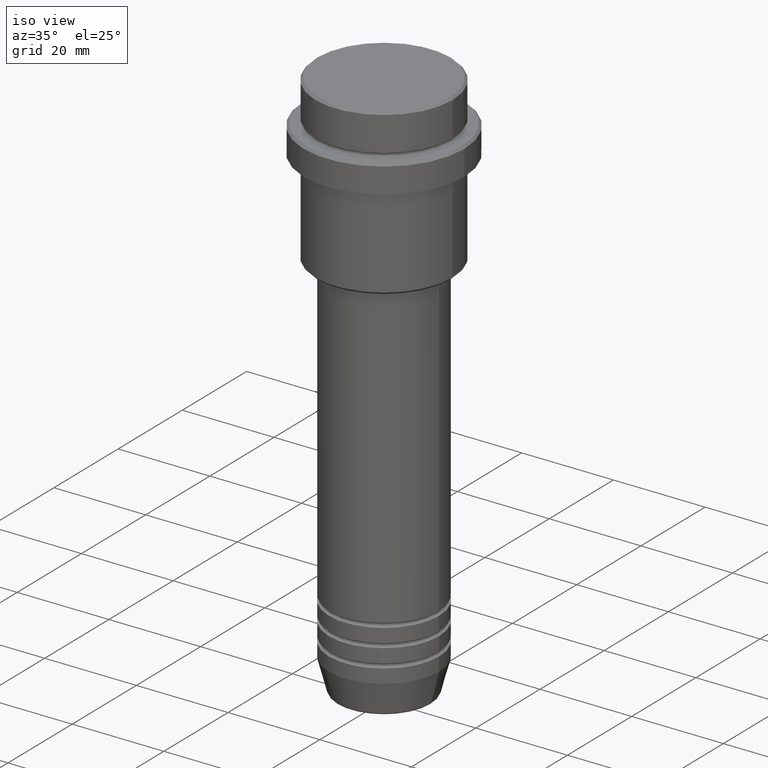
[diagram: clean part render]
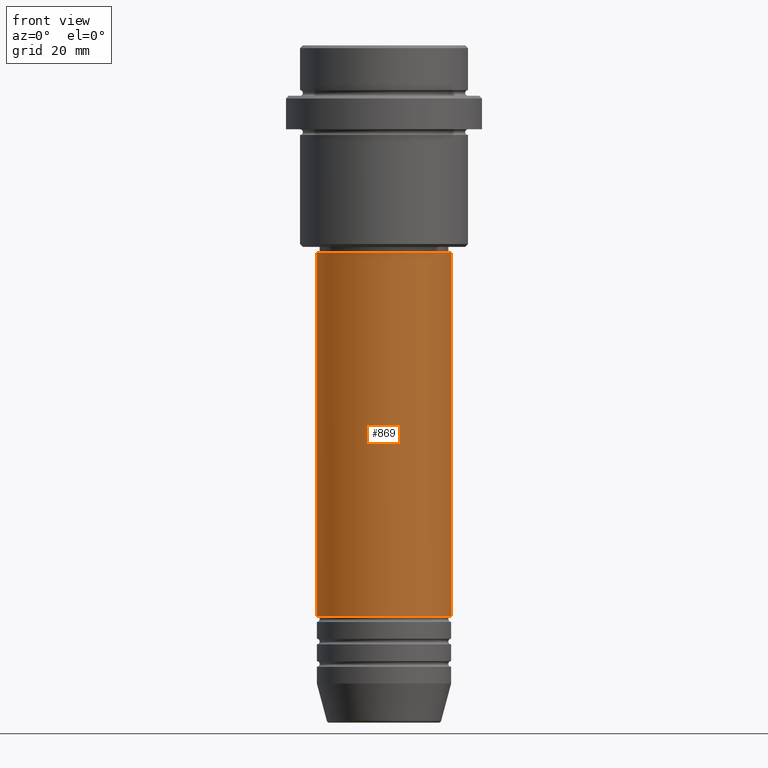
[diagram: tour spotlight — one face highlighted and labeled with its STEP entity id]
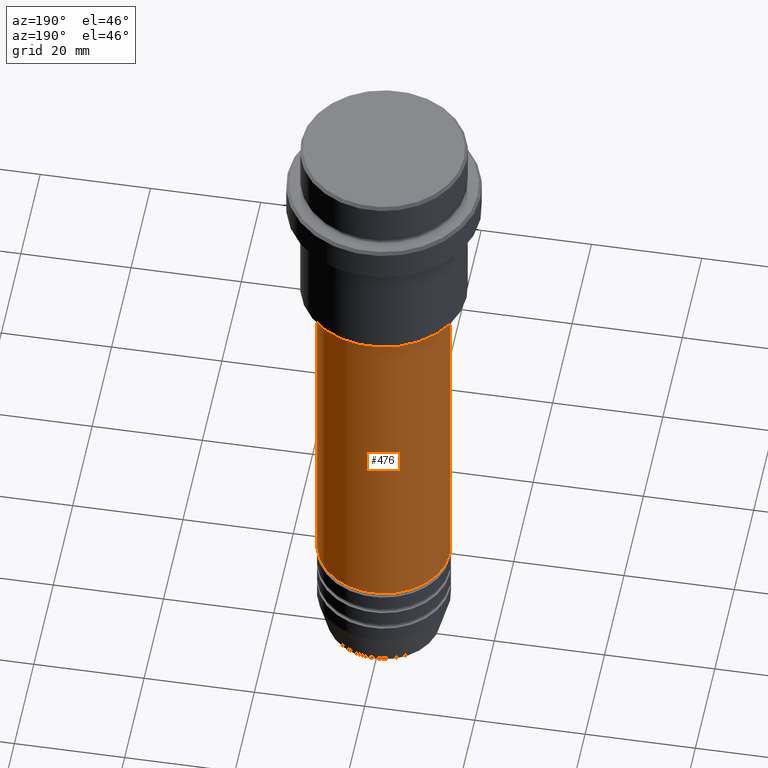
[diagram: tour spotlight — one face highlighted and labeled with its STEP entity id]
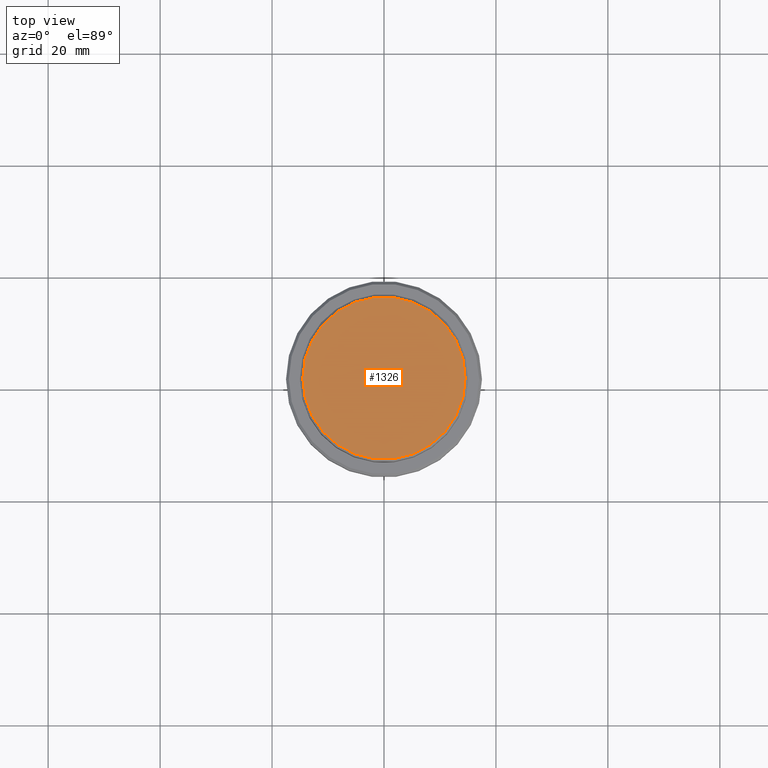
[diagram: tour spotlight — one face highlighted and labeled with its STEP entity id]
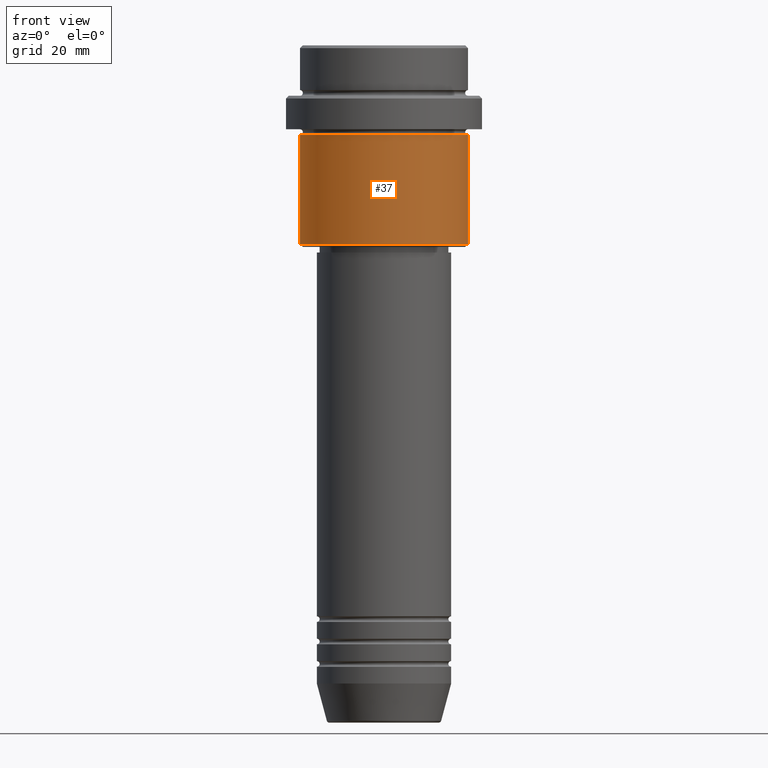
[diagram: tour spotlight — one face highlighted and labeled with its STEP entity id]
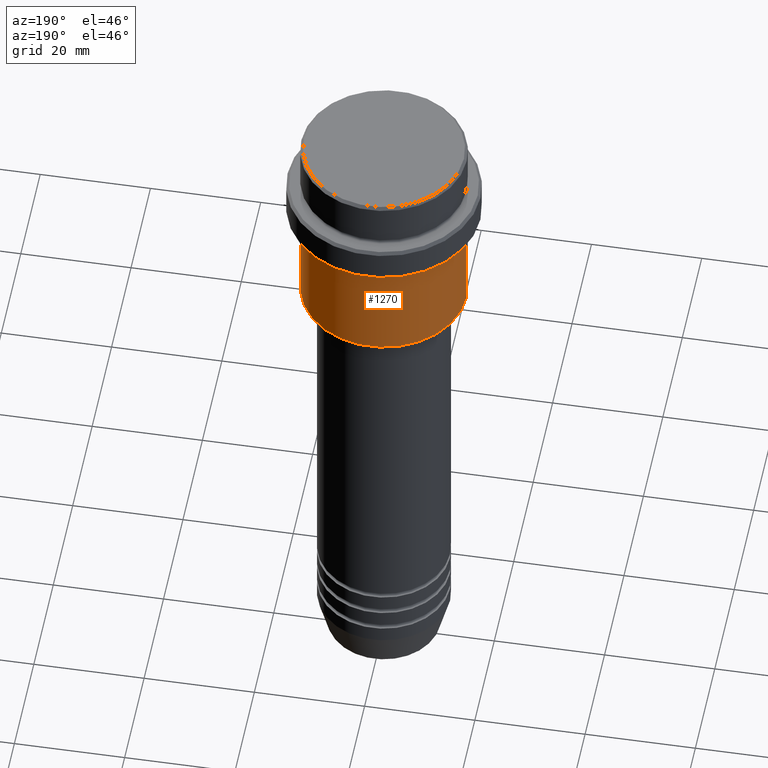
[diagram: tour spotlight — one face highlighted and labeled with its STEP entity id]
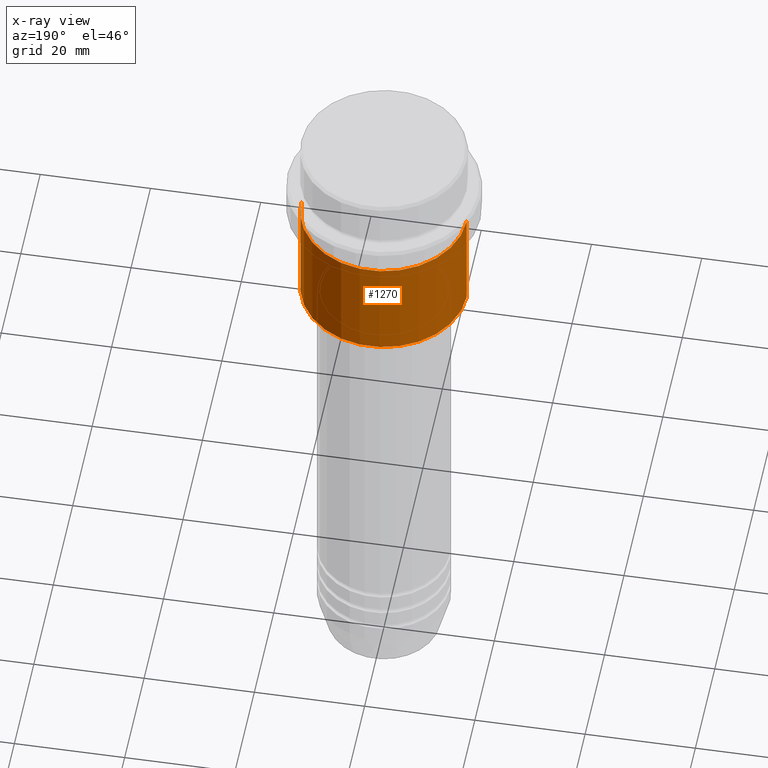
[diagram: x-ray of the same camera — body ghosted, this tour face saturated]
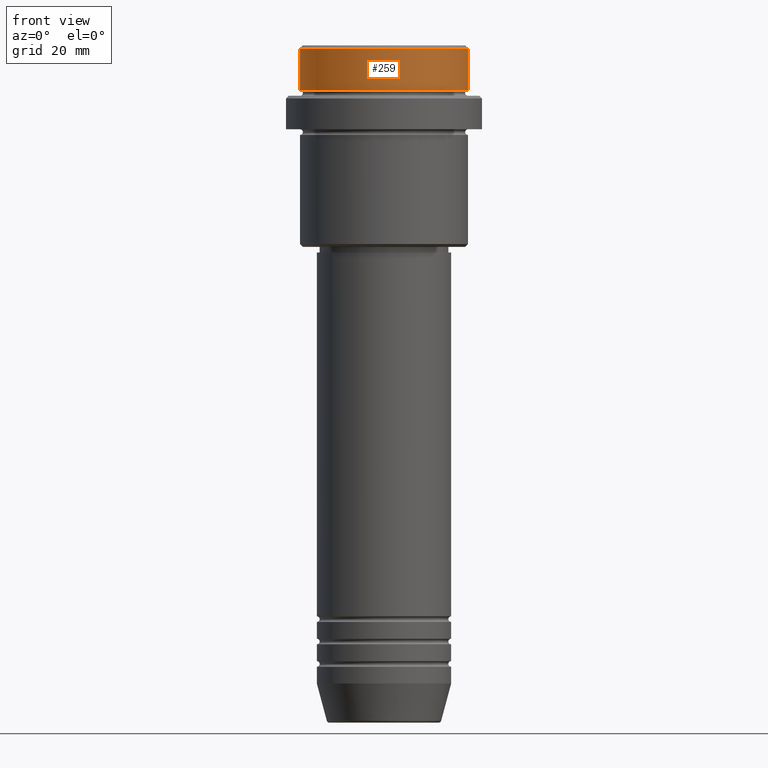
[diagram: tour spotlight — one face highlighted and labeled with its STEP entity id]
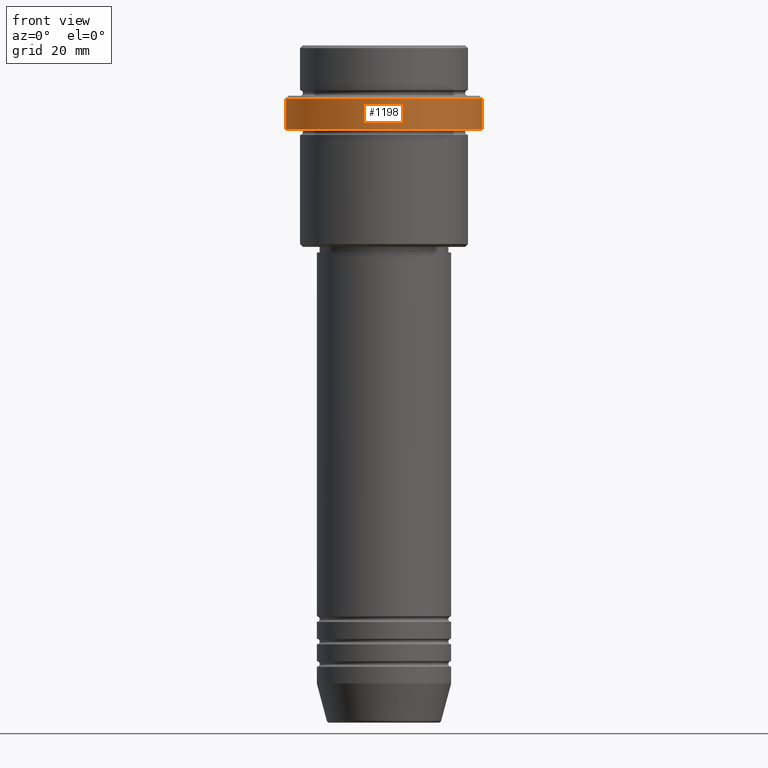
[diagram: tour spotlight — one face highlighted and labeled with its STEP entity id]
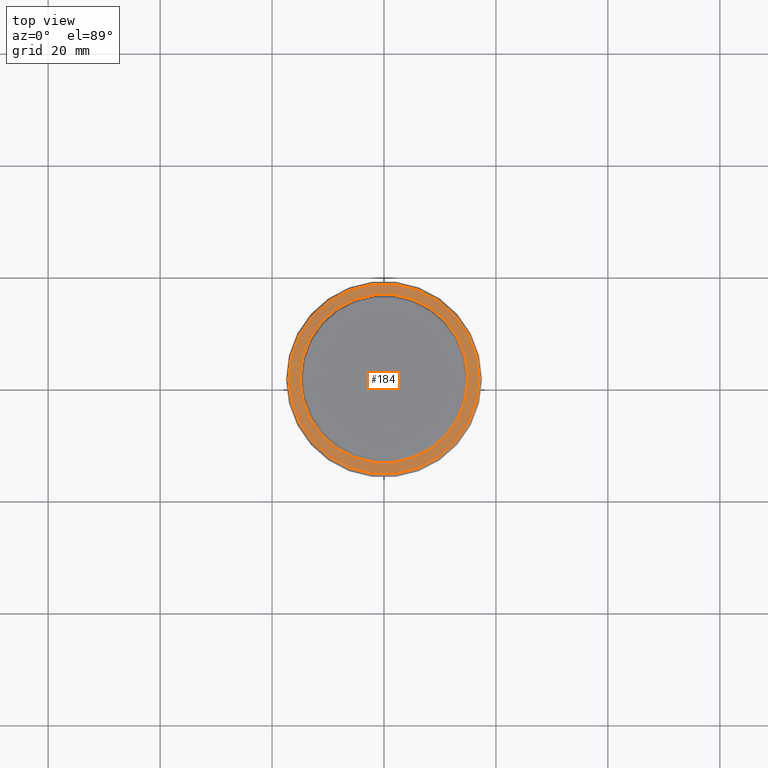
[diagram: tour spotlight — one face highlighted and labeled with its STEP entity id]
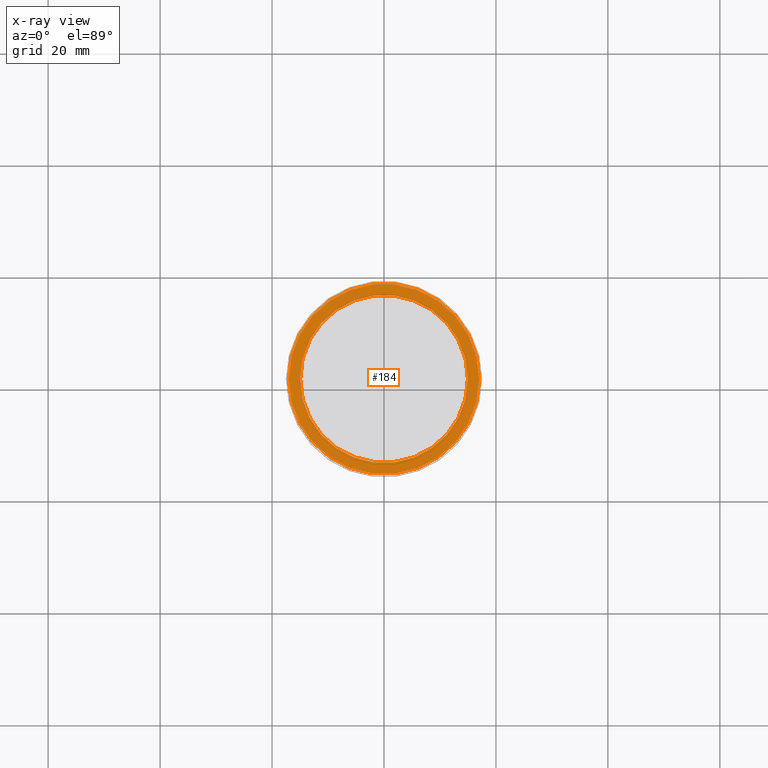
[diagram: x-ray of the same camera — body ghosted, this tour face saturated]
A machine part: a face-by-face anatomy tour. The part has 52 B-rep faces; the first image is the clean iso view, then the 8 largest visible faces are spotlighted one at a time (largest first), each with its STEP entity span.

Face 1 — front view, entity #869. In plain terms, the highlighted cylindrical surface (partial cylindrical patch) has radius 12 mm, axis along (-0, -0, 1).
Definition (entity closure, byte-faithful):
#58 = DIRECTION ( 'NONE',  ( 1.000000000000000000, 0.000000000000000000, 0.000000000000000000 ) ) ;
#64 = VERTEX_POINT ( 'NONE', #377 ) ;
#75 = DIRECTION ( 'NONE',  ( -0.000000000000000000, -0.000000000000000000, 1.000000000000000000 ) ) ;
#88 = DIRECTION ( 'NONE',  ( 1.000000000000000000, 0.000000000000000000, 0.000000000000000000 ) ) ;
#134 = LINE ( 'NONE', #725, #887 ) ;
#190 = CYLINDRICAL_SURFACE ( 'NONE', #287, 12.00000000000000000 ) ;
#203 = ORIENTED_EDGE ( 'NONE', *, *, #241, .F. ) ;
#232 = CARTESIAN_POINT ( 'NONE',  ( -11.99999999999999822, 1.469576158976823750E-15, -37.00000000000002132 ) ) ;
#241 = EDGE_CURVE ( 'NONE', #1323, #1069, #134, .T. ) ;
#282 = DIRECTION ( 'NONE',  ( -0.000000000000000000, -0.000000000000000000, 1.000000000000000000 ) ) ;
#285 = CARTESIAN_POINT ( 'NONE',  ( 12.00000000000000000, 0.000000000000000000, 0.000000000000000000 ) ) ;
#287 = AXIS2_PLACEMENT_3D ( 'NONE', #640, #1074, #1161 ) ;
#377 = CARTESIAN_POINT ( 'NONE',  ( 11.99999999999999822, 0.000000000000000000, -37.00000000000002132 ) ) ;
#397 = LINE ( 'NONE', #285, #1140 ) ;
#406 = DIRECTION ( 'NONE',  ( -0.000000000000000000, -0.000000000000000000, 1.000000000000000000 ) ) ;
#421 = CARTESIAN_POINT ( 'NONE',  ( 0.000000000000000000, 0.000000000000000000, -101.9999999999999005 ) ) ;
#452 = AXIS2_PLACEMENT_3D ( 'NONE', #421, #75, #88 ) ;
#479 = DIRECTION ( 'NONE',  ( -0.000000000000000000, -0.000000000000000000, 1.000000000000000000 ) ) ;
#609 = CARTESIAN_POINT ( 'NONE',  ( 0.000000000000000000, 0.000000000000000000, -37.00000000000002132 ) ) ;
#640 = CARTESIAN_POINT ( 'NONE',  ( 0.000000000000000000, 0.000000000000000000, 0.000000000000000000 ) ) ;
#703 = EDGE_CURVE ( 'NONE', #1069, #64, #1139, .T. ) ;
#725 = CARTESIAN_POINT ( 'NONE',  ( -12.00000000000000000, 1.469576158976823947E-15, 0.000000000000000000 ) ) ;
#811 = EDGE_CURVE ( 'NONE', #1323, #1177, #1068, .T. ) ;
#854 = CARTESIAN_POINT ( 'NONE',  ( -12.00000000000000000, 1.469576158976823947E-15, -101.9999999999999005 ) ) ;
#869 = ADVANCED_FACE ( 'NONE', ( #1389 ), #190, .T. ) ;
#887 = VECTOR ( 'NONE', #282, 1000.000000000000000 ) ;
#918 = EDGE_CURVE ( 'NONE', #1177, #64, #397, .T. ) ;
#974 = ORIENTED_EDGE ( 'NONE', *, *, #918, .T. ) ;
#1068 = CIRCLE ( 'NONE', #452, 12.00000000000000000 ) ;
#1069 = VERTEX_POINT ( 'NONE', #232 ) ;
#1074 = DIRECTION ( 'NONE',  ( -0.000000000000000000, -0.000000000000000000, 1.000000000000000000 ) ) ;
#1139 = CIRCLE ( 'NONE', #1404, 11.99999999999999822 ) ;
#1140 = VECTOR ( 'NONE', #406, 1000.000000000000000 ) ;
#1161 = DIRECTION ( 'NONE',  ( 1.000000000000000000, 0.000000000000000000, 0.000000000000000000 ) ) ;
#1177 = VERTEX_POINT ( 'NONE', #1334 ) ;
#1199 = EDGE_LOOP ( 'NONE', ( #203, #1280, #974, #1405 ) ) ;
#1280 = ORIENTED_EDGE ( 'NONE', *, *, #811, .T. ) ;
#1323 = VERTEX_POINT ( 'NONE', #854 ) ;
#1334 = CARTESIAN_POINT ( 'NONE',  ( 12.00000000000000000, 0.000000000000000000, -101.9999999999999005 ) ) ;
#1389 = FACE_OUTER_BOUND ( 'NONE', #1199, .T. ) ;
#1404 = AXIS2_PLACEMENT_3D ( 'NONE', #609, #479, #58 ) ;
#1405 = ORIENTED_EDGE ( 'NONE', *, *, #703, .F. ) ;

Face 2 — auxiliary view, entity #476. In plain terms, the highlighted cylindrical surface (partial cylindrical patch) has radius 12 mm, axis along (-0, -0, 1).
Definition (entity closure, byte-faithful):
#64 = VERTEX_POINT ( 'NONE', #377 ) ;
#76 = CIRCLE ( 'NONE', #951, 11.99999999999999822 ) ;
#134 = LINE ( 'NONE', #725, #887 ) ;
#178 = DIRECTION ( 'NONE',  ( -0.000000000000000000, -0.000000000000000000, 1.000000000000000000 ) ) ;
#186 = DIRECTION ( 'NONE',  ( 1.000000000000000000, 0.000000000000000000, 0.000000000000000000 ) ) ;
#193 = CYLINDRICAL_SURFACE ( 'NONE', #1196, 12.00000000000000000 ) ;
#232 = CARTESIAN_POINT ( 'NONE',  ( -11.99999999999999822, 1.469576158976823750E-15, -37.00000000000002132 ) ) ;
#241 = EDGE_CURVE ( 'NONE', #1323, #1069, #134, .T. ) ;
#282 = DIRECTION ( 'NONE',  ( -0.000000000000000000, -0.000000000000000000, 1.000000000000000000 ) ) ;
#285 = CARTESIAN_POINT ( 'NONE',  ( 12.00000000000000000, 0.000000000000000000, 0.000000000000000000 ) ) ;
#315 = CARTESIAN_POINT ( 'NONE',  ( 0.000000000000000000, 0.000000000000000000, -37.00000000000002132 ) ) ;
#377 = CARTESIAN_POINT ( 'NONE',  ( 11.99999999999999822, 0.000000000000000000, -37.00000000000002132 ) ) ;
#397 = LINE ( 'NONE', #285, #1140 ) ;
#406 = DIRECTION ( 'NONE',  ( -0.000000000000000000, -0.000000000000000000, 1.000000000000000000 ) ) ;
#416 = FACE_OUTER_BOUND ( 'NONE', #944, .T. ) ;
#437 = EDGE_CURVE ( 'NONE', #64, #1069, #76, .T. ) ;
#476 = ADVANCED_FACE ( 'NONE', ( #416 ), #193, .T. ) ;
#629 = DIRECTION ( 'NONE',  ( -0.000000000000000000, -0.000000000000000000, 1.000000000000000000 ) ) ;
#632 = CARTESIAN_POINT ( 'NONE',  ( 0.000000000000000000, 0.000000000000000000, -101.9999999999999005 ) ) ;
#645 = CARTESIAN_POINT ( 'NONE',  ( 0.000000000000000000, 0.000000000000000000, 0.000000000000000000 ) ) ;
#725 = CARTESIAN_POINT ( 'NONE',  ( -12.00000000000000000, 1.469576158976823947E-15, 0.000000000000000000 ) ) ;
#819 = CIRCLE ( 'NONE', #1180, 12.00000000000000000 ) ;
#854 = CARTESIAN_POINT ( 'NONE',  ( -12.00000000000000000, 1.469576158976823947E-15, -101.9999999999999005 ) ) ;
#887 = VECTOR ( 'NONE', #282, 1000.000000000000000 ) ;
#918 = EDGE_CURVE ( 'NONE', #1177, #64, #397, .T. ) ;
#944 = EDGE_LOOP ( 'NONE', ( #980, #1305, #1197, #1091 ) ) ;
#951 = AXIS2_PLACEMENT_3D ( 'NONE', #315, #1390, #186 ) ;
#980 = ORIENTED_EDGE ( 'NONE', *, *, #1354, .T. ) ;
#1061 = DIRECTION ( 'NONE',  ( 1.000000000000000000, 0.000000000000000000, 0.000000000000000000 ) ) ;
#1063 = DIRECTION ( 'NONE',  ( 1.000000000000000000, 0.000000000000000000, 0.000000000000000000 ) ) ;
#1069 = VERTEX_POINT ( 'NONE', #232 ) ;
#1091 = ORIENTED_EDGE ( 'NONE', *, *, #918, .F. ) ;
#1140 = VECTOR ( 'NONE', #406, 1000.000000000000000 ) ;
#1177 = VERTEX_POINT ( 'NONE', #1334 ) ;
#1180 = AXIS2_PLACEMENT_3D ( 'NONE', #632, #178, #1063 ) ;
#1196 = AXIS2_PLACEMENT_3D ( 'NONE', #645, #629, #1061 ) ;
#1197 = ORIENTED_EDGE ( 'NONE', *, *, #437, .F. ) ;
#1305 = ORIENTED_EDGE ( 'NONE', *, *, #241, .T. ) ;
#1323 = VERTEX_POINT ( 'NONE', #854 ) ;
#1334 = CARTESIAN_POINT ( 'NONE',  ( 12.00000000000000000, 0.000000000000000000, -101.9999999999999005 ) ) ;
#1354 = EDGE_CURVE ( 'NONE', #1177, #1323, #819, .T. ) ;
#1390 = DIRECTION ( 'NONE',  ( -0.000000000000000000, -0.000000000000000000, 1.000000000000000000 ) ) ;

Face 3 — top view, entity #1326. In plain terms, the highlighted planar face has unit normal (0, -0, 1).
Definition (entity closure, byte-faithful):
#138 = DIRECTION ( 'NONE',  ( -0.000000000000000000, -0.000000000000000000, 1.000000000000000000 ) ) ;
#210 = VERTEX_POINT ( 'NONE', #1324 ) ;
#402 = CIRCLE ( 'NONE', #1175, 14.50000000000001066 ) ;
#404 = DIRECTION ( 'NONE',  ( 0.000000000000000000, -0.000000000000000000, 1.000000000000000000 ) ) ;
#405 = CIRCLE ( 'NONE', #432, 14.50000000000001066 ) ;
#432 = AXIS2_PLACEMENT_3D ( 'NONE', #1128, #1133, #601 ) ;
#500 = EDGE_CURVE ( 'NONE', #210, #1337, #402, .T. ) ;
#573 = AXIS2_PLACEMENT_3D ( 'NONE', #735, #404, #932 ) ;
#601 = DIRECTION ( 'NONE',  ( 1.000000000000000000, 0.000000000000000000, 0.000000000000000000 ) ) ;
#638 = FACE_OUTER_BOUND ( 'NONE', #699, .T. ) ;
#697 = EDGE_CURVE ( 'NONE', #1337, #210, #405, .T. ) ;
#699 = EDGE_LOOP ( 'NONE', ( #1077, #794 ) ) ;
#735 = CARTESIAN_POINT ( 'NONE',  ( 0.000000000000000000, 0.000000000000000000, 0.000000000000000000 ) ) ;
#794 = ORIENTED_EDGE ( 'NONE', *, *, #697, .T. ) ;
#878 = DIRECTION ( 'NONE',  ( 1.000000000000000000, 0.000000000000000000, 0.000000000000000000 ) ) ;
#932 = DIRECTION ( 'NONE',  ( 1.000000000000000000, 0.000000000000000000, 0.000000000000000000 ) ) ;
#1053 = PLANE ( 'NONE',  #573 ) ;
#1077 = ORIENTED_EDGE ( 'NONE', *, *, #500, .T. ) ;
#1105 = CARTESIAN_POINT ( 'NONE',  ( 0.000000000000000000, 0.000000000000000000, 0.000000000000000000 ) ) ;
#1128 = CARTESIAN_POINT ( 'NONE',  ( 0.000000000000000000, 0.000000000000000000, 0.000000000000000000 ) ) ;
#1133 = DIRECTION ( 'NONE',  ( -0.000000000000000000, -0.000000000000000000, 1.000000000000000000 ) ) ;
#1175 = AXIS2_PLACEMENT_3D ( 'NONE', #1105, #138, #878 ) ;
#1286 = CARTESIAN_POINT ( 'NONE',  ( 14.50000000000001066, 1.806354028742346591E-15, 0.000000000000000000 ) ) ;
#1324 = CARTESIAN_POINT ( 'NONE',  ( -14.50000000000001066, 0.000000000000000000, 0.000000000000000000 ) ) ;
#1326 = ADVANCED_FACE ( 'NONE', ( #638 ), #1053, .T. ) ;
#1337 = VERTEX_POINT ( 'NONE', #1286 ) ;

Face 4 — front view, entity #37. In plain terms, the highlighted cylindrical surface (partial cylindrical patch) has radius 15 mm, axis along (-0, -0, 1).
Definition (entity closure, byte-faithful):
#22 = VERTEX_POINT ( 'NONE', #1131 ) ;
#37 = ADVANCED_FACE ( 'NONE', ( #149 ), #590, .T. ) ;
#59 = AXIS2_PLACEMENT_3D ( 'NONE', #340, #348, #791 ) ;
#97 = DIRECTION ( 'NONE',  ( -0.000000000000000000, -0.000000000000000000, 1.000000000000000000 ) ) ;
#149 = FACE_OUTER_BOUND ( 'NONE', #333, .T. ) ;
#215 = CIRCLE ( 'NONE', #59, 15.00000000000000000 ) ;
#258 = CARTESIAN_POINT ( 'NONE',  ( 15.00000000000000178, 0.000000000000000000, -16.00000000000000000 ) ) ;
#333 = EDGE_LOOP ( 'NONE', ( #1209, #1181, #1041, #760 ) ) ;
#340 = CARTESIAN_POINT ( 'NONE',  ( 0.000000000000000000, 0.000000000000000000, -35.49999999999999289 ) ) ;
#348 = DIRECTION ( 'NONE',  ( -0.000000000000000000, -0.000000000000000000, 1.000000000000000000 ) ) ;
#400 = LINE ( 'NONE', #837, #1088 ) ;
#438 = DIRECTION ( 'NONE',  ( -0.000000000000000000, -0.000000000000000000, 1.000000000000000000 ) ) ;
#439 = DIRECTION ( 'NONE',  ( -0.000000000000000000, -0.000000000000000000, 1.000000000000000000 ) ) ;
#470 = EDGE_CURVE ( 'NONE', #823, #670, #400, .T. ) ;
#524 = DIRECTION ( 'NONE',  ( -0.000000000000000000, -0.000000000000000000, 1.000000000000000000 ) ) ;
#525 = EDGE_CURVE ( 'NONE', #1208, #22, #1215, .T. ) ;
#527 = CARTESIAN_POINT ( 'NONE',  ( -15.00000000000000000, 1.836970198721029589E-15, -35.49999999999999289 ) ) ;
#590 = CYLINDRICAL_SURFACE ( 'NONE', #955, 15.00000000000000000 ) ;
#596 = AXIS2_PLACEMENT_3D ( 'NONE', #1213, #438, #1006 ) ;
#613 = EDGE_CURVE ( 'NONE', #1208, #823, #215, .T. ) ;
#630 = DIRECTION ( 'NONE',  ( 1.000000000000000000, 0.000000000000000000, 0.000000000000000000 ) ) ;
#670 = VERTEX_POINT ( 'NONE', #258 ) ;
#750 = CIRCLE ( 'NONE', #596, 15.00000000000000178 ) ;
#760 = ORIENTED_EDGE ( 'NONE', *, *, #1065, .F. ) ;
#791 = DIRECTION ( 'NONE',  ( -1.000000000000000000, 0.000000000000000000, 0.000000000000000000 ) ) ;
#823 = VERTEX_POINT ( 'NONE', #948 ) ;
#837 = CARTESIAN_POINT ( 'NONE',  ( 15.00000000000000000, 0.000000000000000000, 0.000000000000000000 ) ) ;
#948 = CARTESIAN_POINT ( 'NONE',  ( 15.00000000000000000, 0.000000000000000000, -35.49999999999999289 ) ) ;
#955 = AXIS2_PLACEMENT_3D ( 'NONE', #1082, #97, #630 ) ;
#1006 = DIRECTION ( 'NONE',  ( 1.000000000000000000, 0.000000000000000000, 0.000000000000000000 ) ) ;
#1041 = ORIENTED_EDGE ( 'NONE', *, *, #470, .T. ) ;
#1065 = EDGE_CURVE ( 'NONE', #22, #670, #750, .T. ) ;
#1082 = CARTESIAN_POINT ( 'NONE',  ( 0.000000000000000000, 0.000000000000000000, 0.000000000000000000 ) ) ;
#1088 = VECTOR ( 'NONE', #524, 1000.000000000000000 ) ;
#1131 = CARTESIAN_POINT ( 'NONE',  ( -15.00000000000000355, 1.836970198721029983E-15, -16.00000000000000000 ) ) ;
#1181 = ORIENTED_EDGE ( 'NONE', *, *, #613, .T. ) ;
#1208 = VERTEX_POINT ( 'NONE', #527 ) ;
#1209 = ORIENTED_EDGE ( 'NONE', *, *, #525, .F. ) ;
#1213 = CARTESIAN_POINT ( 'NONE',  ( 0.000000000000000000, 0.000000000000000000, -16.00000000000000000 ) ) ;
#1215 = LINE ( 'NONE', #1414, #1312 ) ;
#1312 = VECTOR ( 'NONE', #439, 1000.000000000000000 ) ;
#1414 = CARTESIAN_POINT ( 'NONE',  ( -15.00000000000000000, 1.836970198721029589E-15, 0.000000000000000000 ) ) ;

Face 5 — auxiliary view, entity #1270. An x-ray twin of the same camera follows (body ghosted, this face saturated) — the face is partly hidden behind the body. In plain terms, the highlighted cylindrical surface (partial cylindrical patch) has radius 15 mm, axis along (-0, -0, 1).
Definition (entity closure, byte-faithful):
#22 = VERTEX_POINT ( 'NONE', #1131 ) ;
#65 = DIRECTION ( 'NONE',  ( -0.000000000000000000, -0.000000000000000000, 1.000000000000000000 ) ) ;
#68 = CARTESIAN_POINT ( 'NONE',  ( 0.000000000000000000, 0.000000000000000000, 0.000000000000000000 ) ) ;
#192 = AXIS2_PLACEMENT_3D ( 'NONE', #356, #225, #1085 ) ;
#199 = DIRECTION ( 'NONE',  ( -1.000000000000000000, 0.000000000000000000, 0.000000000000000000 ) ) ;
#225 = DIRECTION ( 'NONE',  ( -0.000000000000000000, -0.000000000000000000, 1.000000000000000000 ) ) ;
#258 = CARTESIAN_POINT ( 'NONE',  ( 15.00000000000000178, 0.000000000000000000, -16.00000000000000000 ) ) ;
#356 = CARTESIAN_POINT ( 'NONE',  ( 0.000000000000000000, 0.000000000000000000, -16.00000000000000000 ) ) ;
#395 = FACE_OUTER_BOUND ( 'NONE', #1411, .T. ) ;
#400 = LINE ( 'NONE', #837, #1088 ) ;
#439 = DIRECTION ( 'NONE',  ( -0.000000000000000000, -0.000000000000000000, 1.000000000000000000 ) ) ;
#467 = ORIENTED_EDGE ( 'NONE', *, *, #470, .F. ) ;
#470 = EDGE_CURVE ( 'NONE', #823, #670, #400, .T. ) ;
#524 = DIRECTION ( 'NONE',  ( -0.000000000000000000, -0.000000000000000000, 1.000000000000000000 ) ) ;
#525 = EDGE_CURVE ( 'NONE', #1208, #22, #1215, .T. ) ;
#527 = CARTESIAN_POINT ( 'NONE',  ( -15.00000000000000000, 1.836970198721029589E-15, -35.49999999999999289 ) ) ;
#569 = EDGE_CURVE ( 'NONE', #670, #22, #594, .T. ) ;
#594 = CIRCLE ( 'NONE', #192, 15.00000000000000178 ) ;
#621 = AXIS2_PLACEMENT_3D ( 'NONE', #68, #65, #960 ) ;
#670 = VERTEX_POINT ( 'NONE', #258 ) ;
#823 = VERTEX_POINT ( 'NONE', #948 ) ;
#833 = CYLINDRICAL_SURFACE ( 'NONE', #621, 15.00000000000000000 ) ;
#837 = CARTESIAN_POINT ( 'NONE',  ( 15.00000000000000000, 0.000000000000000000, 0.000000000000000000 ) ) ;
#855 = CARTESIAN_POINT ( 'NONE',  ( 0.000000000000000000, 0.000000000000000000, -35.49999999999999289 ) ) ;
#860 = EDGE_CURVE ( 'NONE', #823, #1208, #1032, .T. ) ;
#948 = CARTESIAN_POINT ( 'NONE',  ( 15.00000000000000000, 0.000000000000000000, -35.49999999999999289 ) ) ;
#957 = DIRECTION ( 'NONE',  ( -0.000000000000000000, -0.000000000000000000, 1.000000000000000000 ) ) ;
#960 = DIRECTION ( 'NONE',  ( 1.000000000000000000, 0.000000000000000000, 0.000000000000000000 ) ) ;
#1030 = ORIENTED_EDGE ( 'NONE', *, *, #860, .T. ) ;
#1032 = CIRCLE ( 'NONE', #1316, 15.00000000000000000 ) ;
#1054 = ORIENTED_EDGE ( 'NONE', *, *, #525, .T. ) ;
#1085 = DIRECTION ( 'NONE',  ( 1.000000000000000000, 0.000000000000000000, 0.000000000000000000 ) ) ;
#1087 = ORIENTED_EDGE ( 'NONE', *, *, #569, .F. ) ;
#1088 = VECTOR ( 'NONE', #524, 1000.000000000000000 ) ;
#1131 = CARTESIAN_POINT ( 'NONE',  ( -15.00000000000000355, 1.836970198721029983E-15, -16.00000000000000000 ) ) ;
#1208 = VERTEX_POINT ( 'NONE', #527 ) ;
#1215 = LINE ( 'NONE', #1414, #1312 ) ;
#1270 = ADVANCED_FACE ( 'NONE', ( #395 ), #833, .T. ) ;
#1312 = VECTOR ( 'NONE', #439, 1000.000000000000000 ) ;
#1316 = AXIS2_PLACEMENT_3D ( 'NONE', #855, #957, #199 ) ;
#1411 = EDGE_LOOP ( 'NONE', ( #1030, #1054, #1087, #467 ) ) ;
#1414 = CARTESIAN_POINT ( 'NONE',  ( -15.00000000000000000, 1.836970198721029589E-15, 0.000000000000000000 ) ) ;

Face 6 — front view, entity #259. In plain terms, the highlighted cylindrical surface (partial cylindrical patch) has radius 15 mm, axis along (-0, -0, 1).
Definition (entity closure, byte-faithful):
#16 = VERTEX_POINT ( 'NONE', #827 ) ;
#44 = VERTEX_POINT ( 'NONE', #626 ) ;
#46 = EDGE_CURVE ( 'NONE', #16, #540, #943, .T. ) ;
#153 = EDGE_CURVE ( 'NONE', #16, #228, #619, .T. ) ;
#228 = VERTEX_POINT ( 'NONE', #561 ) ;
#259 = ADVANCED_FACE ( 'NONE', ( #785 ), #803, .T. ) ;
#310 = VECTOR ( 'NONE', #1062, 1000.000000000000000 ) ;
#444 = CARTESIAN_POINT ( 'NONE',  ( 15.00000000000000000, 0.000000000000000000, 0.000000000000000000 ) ) ;
#446 = CARTESIAN_POINT ( 'NONE',  ( -15.00000000000000000, 1.836970198721029589E-15, -0.5000000000000107692 ) ) ;
#463 = ORIENTED_EDGE ( 'NONE', *, *, #153, .T. ) ;
#485 = VECTOR ( 'NONE', #883, 1000.000000000000000 ) ;
#489 = EDGE_CURVE ( 'NONE', #44, #540, #906, .T. ) ;
#540 = VERTEX_POINT ( 'NONE', #446 ) ;
#561 = CARTESIAN_POINT ( 'NONE',  ( 15.00000000000000000, 0.000000000000000000, -7.999999999999998224 ) ) ;
#583 = DIRECTION ( 'NONE',  ( -0.000000000000000000, -0.000000000000000000, 1.000000000000000000 ) ) ;
#619 = CIRCLE ( 'NONE', #690, 15.00000000000000000 ) ;
#626 = CARTESIAN_POINT ( 'NONE',  ( 15.00000000000000000, 0.000000000000000000, -0.5000000000000107692 ) ) ;
#685 = LINE ( 'NONE', #444, #485 ) ;
#690 = AXIS2_PLACEMENT_3D ( 'NONE', #1292, #871, #1313 ) ;
#783 = DIRECTION ( 'NONE',  ( 0.000000000000000000, 0.000000000000000000, -1.000000000000000000 ) ) ;
#785 = FACE_OUTER_BOUND ( 'NONE', #857, .T. ) ;
#803 = CYLINDRICAL_SURFACE ( 'NONE', #976, 15.00000000000000000 ) ;
#827 = CARTESIAN_POINT ( 'NONE',  ( -15.00000000000000000, 1.836970198721029589E-15, -7.999999999999998224 ) ) ;
#857 = EDGE_LOOP ( 'NONE', ( #1398, #463, #947, #1322 ) ) ;
#871 = DIRECTION ( 'NONE',  ( -0.000000000000000000, -0.000000000000000000, 1.000000000000000000 ) ) ;
#883 = DIRECTION ( 'NONE',  ( -0.000000000000000000, -0.000000000000000000, 1.000000000000000000 ) ) ;
#906 = CIRCLE ( 'NONE', #1116, 15.00000000000000000 ) ;
#930 = EDGE_CURVE ( 'NONE', #228, #44, #685, .T. ) ;
#943 = LINE ( 'NONE', #1376, #310 ) ;
#947 = ORIENTED_EDGE ( 'NONE', *, *, #930, .T. ) ;
#976 = AXIS2_PLACEMENT_3D ( 'NONE', #1155, #583, #1021 ) ;
#1021 = DIRECTION ( 'NONE',  ( 1.000000000000000000, 0.000000000000000000, 0.000000000000000000 ) ) ;
#1062 = DIRECTION ( 'NONE',  ( -0.000000000000000000, -0.000000000000000000, 1.000000000000000000 ) ) ;
#1111 = DIRECTION ( 'NONE',  ( 1.000000000000000000, 0.000000000000000000, 0.000000000000000000 ) ) ;
#1116 = AXIS2_PLACEMENT_3D ( 'NONE', #1223, #783, #1111 ) ;
#1155 = CARTESIAN_POINT ( 'NONE',  ( 0.000000000000000000, 0.000000000000000000, 0.000000000000000000 ) ) ;
#1223 = CARTESIAN_POINT ( 'NONE',  ( 0.000000000000000000, 0.000000000000000000, -0.5000000000000107692 ) ) ;
#1292 = CARTESIAN_POINT ( 'NONE',  ( 0.000000000000000000, 0.000000000000000000, -7.999999999999998224 ) ) ;
#1313 = DIRECTION ( 'NONE',  ( 1.000000000000000000, 0.000000000000000000, 0.000000000000000000 ) ) ;
#1322 = ORIENTED_EDGE ( 'NONE', *, *, #489, .T. ) ;
#1376 = CARTESIAN_POINT ( 'NONE',  ( -15.00000000000000000, 1.836970198721029589E-15, 0.000000000000000000 ) ) ;
#1398 = ORIENTED_EDGE ( 'NONE', *, *, #46, .F. ) ;

Face 7 — front view, entity #1198. In plain terms, the highlighted cylindrical surface (partial cylindrical patch) has radius 17.5 mm, axis along (-0, -0, 1).
Definition (entity closure, byte-faithful):
#66 = LINE ( 'NONE', #511, #155 ) ;
#123 = VERTEX_POINT ( 'NONE', #1268 ) ;
#142 = CARTESIAN_POINT ( 'NONE',  ( 0.000000000000000000, 0.000000000000000000, 0.000000000000000000 ) ) ;
#155 = VECTOR ( 'NONE', #180, 1000.000000000000000 ) ;
#172 = DIRECTION ( 'NONE',  ( 1.000000000000000000, 0.000000000000000000, 0.000000000000000000 ) ) ;
#176 = VECTOR ( 'NONE', #292, 1000.000000000000000 ) ;
#180 = DIRECTION ( 'NONE',  ( -0.000000000000000000, -0.000000000000000000, 1.000000000000000000 ) ) ;
#222 = CIRCLE ( 'NONE', #1141, 17.50000000000000000 ) ;
#250 = CYLINDRICAL_SURFACE ( 'NONE', #505, 17.50000000000000000 ) ;
#280 = CARTESIAN_POINT ( 'NONE',  ( 0.000000000000000000, 0.000000000000000000, -15.00000000000000000 ) ) ;
#292 = DIRECTION ( 'NONE',  ( -0.000000000000000000, -0.000000000000000000, 1.000000000000000000 ) ) ;
#384 = AXIS2_PLACEMENT_3D ( 'NONE', #280, #724, #172 ) ;
#419 = ORIENTED_EDGE ( 'NONE', *, *, #1259, .F. ) ;
#426 = ORIENTED_EDGE ( 'NONE', *, *, #898, .T. ) ;
#431 = VERTEX_POINT ( 'NONE', #1298 ) ;
#495 = ORIENTED_EDGE ( 'NONE', *, *, #904, .T. ) ;
#505 = AXIS2_PLACEMENT_3D ( 'NONE', #142, #585, #1024 ) ;
#511 = CARTESIAN_POINT ( 'NONE',  ( 17.50000000000000000, 0.000000000000000000, 0.000000000000000000 ) ) ;
#514 = CARTESIAN_POINT ( 'NONE',  ( 0.000000000000000000, 0.000000000000000000, -9.500000000000014211 ) ) ;
#531 = ORIENTED_EDGE ( 'NONE', *, *, #1287, .T. ) ;
#585 = DIRECTION ( 'NONE',  ( -0.000000000000000000, -0.000000000000000000, 1.000000000000000000 ) ) ;
#587 = CARTESIAN_POINT ( 'NONE',  ( 17.50000000000000000, 0.000000000000000000, -9.500000000000014211 ) ) ;
#698 = VERTEX_POINT ( 'NONE', #587 ) ;
#715 = EDGE_LOOP ( 'NONE', ( #419, #426, #495, #531 ) ) ;
#721 = DIRECTION ( 'NONE',  ( 0.000000000000000000, 0.000000000000000000, -1.000000000000000000 ) ) ;
#724 = DIRECTION ( 'NONE',  ( -0.000000000000000000, -0.000000000000000000, 1.000000000000000000 ) ) ;
#738 = DIRECTION ( 'NONE',  ( 1.000000000000000000, 0.000000000000000000, 0.000000000000000000 ) ) ;
#898 = EDGE_CURVE ( 'NONE', #970, #123, #1070, .T. ) ;
#904 = EDGE_CURVE ( 'NONE', #123, #698, #66, .T. ) ;
#970 = VERTEX_POINT ( 'NONE', #1117 ) ;
#1017 = FACE_OUTER_BOUND ( 'NONE', #715, .T. ) ;
#1024 = DIRECTION ( 'NONE',  ( 1.000000000000000000, 0.000000000000000000, 0.000000000000000000 ) ) ;
#1070 = CIRCLE ( 'NONE', #384, 17.50000000000000000 ) ;
#1117 = CARTESIAN_POINT ( 'NONE',  ( -17.50000000000000000, 2.143131898507868248E-15, -15.00000000000000000 ) ) ;
#1141 = AXIS2_PLACEMENT_3D ( 'NONE', #514, #721, #738 ) ;
#1171 = CARTESIAN_POINT ( 'NONE',  ( -17.50000000000000000, 2.143131898507868248E-15, 0.000000000000000000 ) ) ;
#1198 = ADVANCED_FACE ( 'NONE', ( #1017 ), #250, .T. ) ;
#1259 = EDGE_CURVE ( 'NONE', #970, #431, #1370, .T. ) ;
#1268 = CARTESIAN_POINT ( 'NONE',  ( 17.50000000000000000, 0.000000000000000000, -15.00000000000000000 ) ) ;
#1287 = EDGE_CURVE ( 'NONE', #698, #431, #222, .T. ) ;
#1298 = CARTESIAN_POINT ( 'NONE',  ( -17.50000000000000000, 2.143131898507868248E-15, -9.500000000000014211 ) ) ;
#1370 = LINE ( 'NONE', #1171, #176 ) ;

Face 8 — top view, entity #184. An x-ray twin of the same camera follows (body ghosted, this face saturated) — the face is partly hidden behind the body. In plain terms, the highlighted planar face has unit normal (0, -0, 1).
Definition (entity closure, byte-faithful):
#47 = ORIENTED_EDGE ( 'NONE', *, *, #1372, .T. ) ;
#67 = DIRECTION ( 'NONE',  ( -0.000000000000000000, -0.000000000000000000, 1.000000000000000000 ) ) ;
#114 = FACE_OUTER_BOUND ( 'NONE', #1262, .T. ) ;
#143 = CARTESIAN_POINT ( 'NONE',  ( 17.00000000000000000, 2.112515728529184067E-15, -9.000000000000000000 ) ) ;
#161 = CARTESIAN_POINT ( 'NONE',  ( 14.99999999999999289, 0.000000000000000000, -9.000000000000000000 ) ) ;
#184 = ADVANCED_FACE ( 'NONE', ( #114, #826 ), #394, .T. ) ;
#195 = AXIS2_PLACEMENT_3D ( 'NONE', #969, #1078, #891 ) ;
#248 = CARTESIAN_POINT ( 'NONE',  ( -14.99999999999999289, 1.836970198721028800E-15, -9.000000000000000000 ) ) ;
#255 = ORIENTED_EDGE ( 'NONE', *, *, #1412, .T. ) ;
#272 = CARTESIAN_POINT ( 'NONE',  ( -17.00000000000000000, 0.000000000000000000, -9.000000000000000000 ) ) ;
#318 = VERTEX_POINT ( 'NONE', #248 ) ;
#363 = CIRCLE ( 'NONE', #195, 14.99999999999999289 ) ;
#394 = PLANE ( 'NONE',  #1266 ) ;
#398 = EDGE_CURVE ( 'NONE', #646, #765, #430, .T. ) ;
#430 = CIRCLE ( 'NONE', #1227, 17.00000000000000000 ) ;
#457 = CIRCLE ( 'NONE', #1252, 14.99999999999999289 ) ;
#483 = DIRECTION ( 'NONE',  ( 0.000000000000000000, -0.000000000000000000, 1.000000000000000000 ) ) ;
#646 = VERTEX_POINT ( 'NONE', #143 ) ;
#651 = DIRECTION ( 'NONE',  ( 1.000000000000000000, 0.000000000000000000, 0.000000000000000000 ) ) ;
#658 = DIRECTION ( 'NONE',  ( 1.000000000000000000, 0.000000000000000000, 0.000000000000000000 ) ) ;
#765 = VERTEX_POINT ( 'NONE', #272 ) ;
#792 = EDGE_LOOP ( 'NONE', ( #255, #1366 ) ) ;
#802 = CIRCLE ( 'NONE', #984, 17.00000000000000000 ) ;
#825 = DIRECTION ( 'NONE',  ( 1.000000000000000000, 0.000000000000000000, 0.000000000000000000 ) ) ;
#826 = FACE_BOUND ( 'NONE', #792, .T. ) ;
#852 = CARTESIAN_POINT ( 'NONE',  ( 0.000000000000000000, 0.000000000000000000, -9.000000000000000000 ) ) ;
#891 = DIRECTION ( 'NONE',  ( 1.000000000000000000, 0.000000000000000000, 0.000000000000000000 ) ) ;
#936 = ORIENTED_EDGE ( 'NONE', *, *, #398, .T. ) ;
#969 = CARTESIAN_POINT ( 'NONE',  ( 0.000000000000000000, 0.000000000000000000, -9.000000000000000000 ) ) ;
#984 = AXIS2_PLACEMENT_3D ( 'NONE', #1004, #1300, #658 ) ;
#1004 = CARTESIAN_POINT ( 'NONE',  ( 0.000000000000000000, 0.000000000000000000, -9.000000000000000000 ) ) ;
#1078 = DIRECTION ( 'NONE',  ( 0.000000000000000000, 0.000000000000000000, -1.000000000000000000 ) ) ;
#1095 = VERTEX_POINT ( 'NONE', #161 ) ;
#1136 = DIRECTION ( 'NONE',  ( 0.000000000000000000, 0.000000000000000000, -1.000000000000000000 ) ) ;
#1146 = DIRECTION ( 'NONE',  ( 1.000000000000000000, 0.000000000000000000, 0.000000000000000000 ) ) ;
#1189 = EDGE_CURVE ( 'NONE', #318, #1095, #457, .T. ) ;
#1227 = AXIS2_PLACEMENT_3D ( 'NONE', #852, #67, #651 ) ;
#1242 = CARTESIAN_POINT ( 'NONE',  ( 0.000000000000000000, 0.000000000000000000, -9.000000000000000000 ) ) ;
#1252 = AXIS2_PLACEMENT_3D ( 'NONE', #1242, #1136, #1146 ) ;
#1261 = CARTESIAN_POINT ( 'NONE',  ( 0.000000000000000000, 14.49999999999999467, -9.000000000000000000 ) ) ;
#1262 = EDGE_LOOP ( 'NONE', ( #47, #936 ) ) ;
#1266 = AXIS2_PLACEMENT_3D ( 'NONE', #1261, #483, #825 ) ;
#1300 = DIRECTION ( 'NONE',  ( -0.000000000000000000, -0.000000000000000000, 1.000000000000000000 ) ) ;
#1366 = ORIENTED_EDGE ( 'NONE', *, *, #1189, .T. ) ;
#1372 = EDGE_CURVE ( 'NONE', #765, #646, #802, .T. ) ;
#1412 = EDGE_CURVE ( 'NONE', #1095, #318, #363, .T. ) ;